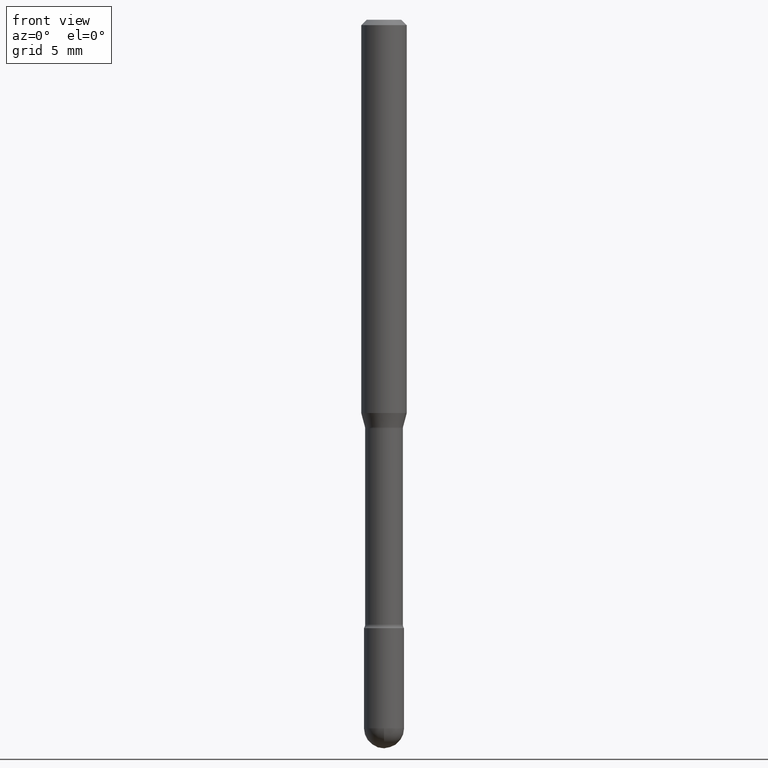
[diagram: clean part render]
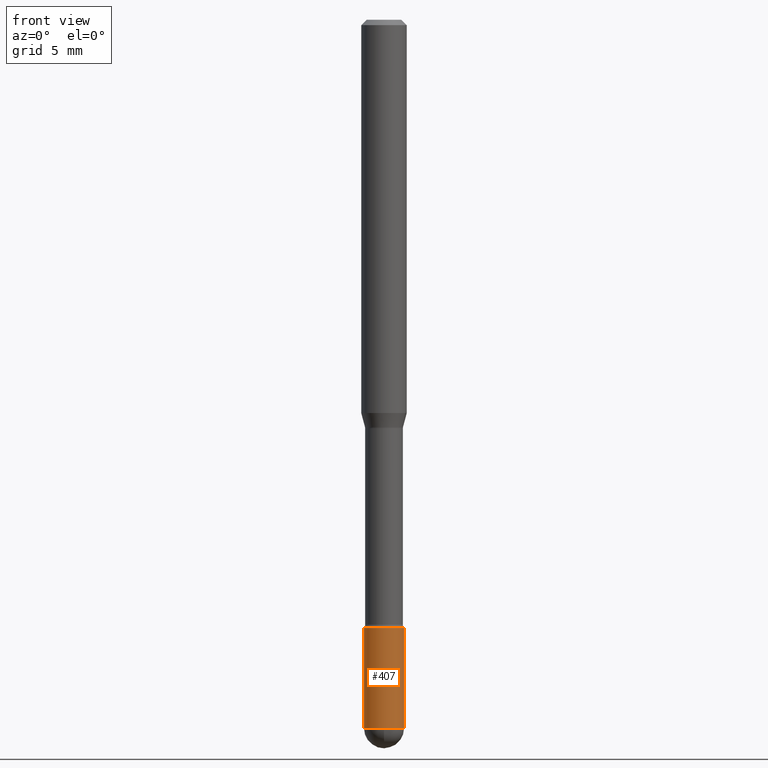
[diagram: same view with one face highlighted and labeled with its STEP entity id]
A machine part, front view. The second image highlights one B-rep face of the part: STEP entity #407.
In plain terms, the highlighted cylindrical surface (edge-blend (fillet) strip) has radius 1.397 mm, axis along (-0, 0, 1).
Its self-contained STEP definition (entity closure, byte-faithful):
#7 = CIRCLE ( 'NONE', #215, 0.05500000000000000028 ) ;
#16 = CARTESIAN_POINT ( 'NONE',  ( 0.05500000000000000028, -6.694915467231730455E-15, -1.944999999999999840 ) ) ;
#20 = DIRECTION ( 'NONE',  ( -2.445468806185136877E-29, 3.491481338843145188E-15, 1.000000000000000000 ) ) ;
#29 = ORIENTED_EDGE ( 'NONE', *, *, #33, .T. ) ;
#33 = EDGE_CURVE ( 'NONE', #448, #314, #158, .T. ) ;
#53 = AXIS2_PLACEMENT_3D ( 'NONE', #461, #160, #164 ) ;
#59 = DIRECTION ( 'NONE',  ( -2.445468806185136597E-29, 3.491481338843145583E-15, 1.000000000000000000 ) ) ;
#79 = ORIENTED_EDGE ( 'NONE', *, *, #106, .T. ) ;
#81 = CARTESIAN_POINT ( 'NONE',  ( 4.083932906329177803E-29, -5.830773835868053056E-15, -1.669999999999999929 ) ) ;
#96 = EDGE_CURVE ( 'NONE', #398, #182, #469, .T. ) ;
#106 = EDGE_CURVE ( 'NONE', #314, #412, #269, .T. ) ;
#118 = EDGE_LOOP ( 'NONE', ( #324, #533, #29, #79, #276 ) ) ;
#158 = CIRCLE ( 'NONE', #380, 0.05500000000000000028 ) ;
#160 = DIRECTION ( 'NONE',  ( -2.445468806185136597E-29, 3.491481338843145583E-15, 1.000000000000000000 ) ) ;
#164 = DIRECTION ( 'NONE',  ( 1.000000000000000000, -6.982962677686266711E-15, 4.876176775795935793E-29 ) ) ;
#169 = EDGE_CURVE ( 'NONE', #182, #412, #7, .T. ) ;
#178 = FACE_OUTER_BOUND ( 'NONE', #118, .T. ) ;
#182 = VERTEX_POINT ( 'NONE', #481 ) ;
#196 = DIRECTION ( 'NONE',  ( 1.000000000000000000, -6.982962677686262766E-15, 0.000000000000000000 ) ) ;
#211 = CARTESIAN_POINT ( 'NONE',  ( -0.05500000000000000028, -5.920054015290930810E-15, -1.944999999999999840 ) ) ;
#215 = AXIS2_PLACEMENT_3D ( 'NONE', #81, #231, #196 ) ;
#216 = CIRCLE ( 'NONE', #531, 0.05500000000000000028 ) ;
#231 = DIRECTION ( 'NONE',  ( -2.445468806185136597E-29, 3.491481338843145583E-15, 1.000000000000000000 ) ) ;
#232 = DIRECTION ( 'NONE',  ( -2.445468806185136877E-29, 3.491481338843145188E-15, 1.000000000000000000 ) ) ;
#260 = CARTESIAN_POINT ( 'NONE',  ( 4.756436828030090255E-29, -6.790931204049917095E-15, -1.944999999999999840 ) ) ;
#265 = CARTESIAN_POINT ( 'NONE',  ( -0.05500000000000000028, 3.907985046680551042E-16, -2.705414299640198362E-30 ) ) ;
#269 = LINE ( 'NONE', #436, #335 ) ;
#276 = ORIENTED_EDGE ( 'NONE', *, *, #169, .F. ) ;
#301 = CARTESIAN_POINT ( 'NONE',  ( 4.756436828030090255E-29, -6.790931204049917095E-15, -1.944999999999999840 ) ) ;
#314 = VERTEX_POINT ( 'NONE', #16 ) ;
#324 = ORIENTED_EDGE ( 'NONE', *, *, #96, .F. ) ;
#335 = VECTOR ( 'NONE', #232, 39.37007874015748143 ) ;
#357 = CYLINDRICAL_SURFACE ( 'NONE', #53, 0.05500000000000000028 ) ;
#380 = AXIS2_PLACEMENT_3D ( 'NONE', #301, #59, #420 ) ;
#398 = VERTEX_POINT ( 'NONE', #211 ) ;
#407 = ADVANCED_FACE ( 'NONE', ( #178 ), #357, .T. ) ;
#412 = VERTEX_POINT ( 'NONE', #524 ) ;
#415 = VECTOR ( 'NONE', #20, 39.37007874015748143 ) ;
#420 = DIRECTION ( 'NONE',  ( 1.000000000000000000, -6.982962677686262766E-15, 0.000000000000000000 ) ) ;
#426 = CARTESIAN_POINT ( 'NONE',  ( -3.907985046680076246E-16, -0.05500000000000680733, -1.944999999999999618 ) ) ;
#436 = CARTESIAN_POINT ( 'NONE',  ( 0.05500000000000000028, -3.840629472727446888E-16, 2.681897226687764826E-30 ) ) ;
#448 = VERTEX_POINT ( 'NONE', #426 ) ;
#461 = CARTESIAN_POINT ( 'NONE',  ( 0.000000000000000000, 0.000000000000000000, 0.000000000000000000 ) ) ;
#469 = LINE ( 'NONE', #265, #415 ) ;
#471 = DIRECTION ( 'NONE',  ( 1.000000000000000000, -6.982962677686262766E-15, 0.000000000000000000 ) ) ;
#481 = CARTESIAN_POINT ( 'NONE',  ( -0.05500000000000000028, -5.920054015290930021E-15, -1.669999999999999929 ) ) ;
#524 = CARTESIAN_POINT ( 'NONE',  ( 0.05500000000000000028, -6.214836783140797252E-15, -1.669999999999999929 ) ) ;
#531 = AXIS2_PLACEMENT_3D ( 'NONE', #260, #543, #471 ) ;
#533 = ORIENTED_EDGE ( 'NONE', *, *, #546, .T. ) ;
#543 = DIRECTION ( 'NONE',  ( -2.445468806185136597E-29, 3.491481338843145583E-15, 1.000000000000000000 ) ) ;
#546 = EDGE_CURVE ( 'NONE', #398, #448, #216, .T. ) ;